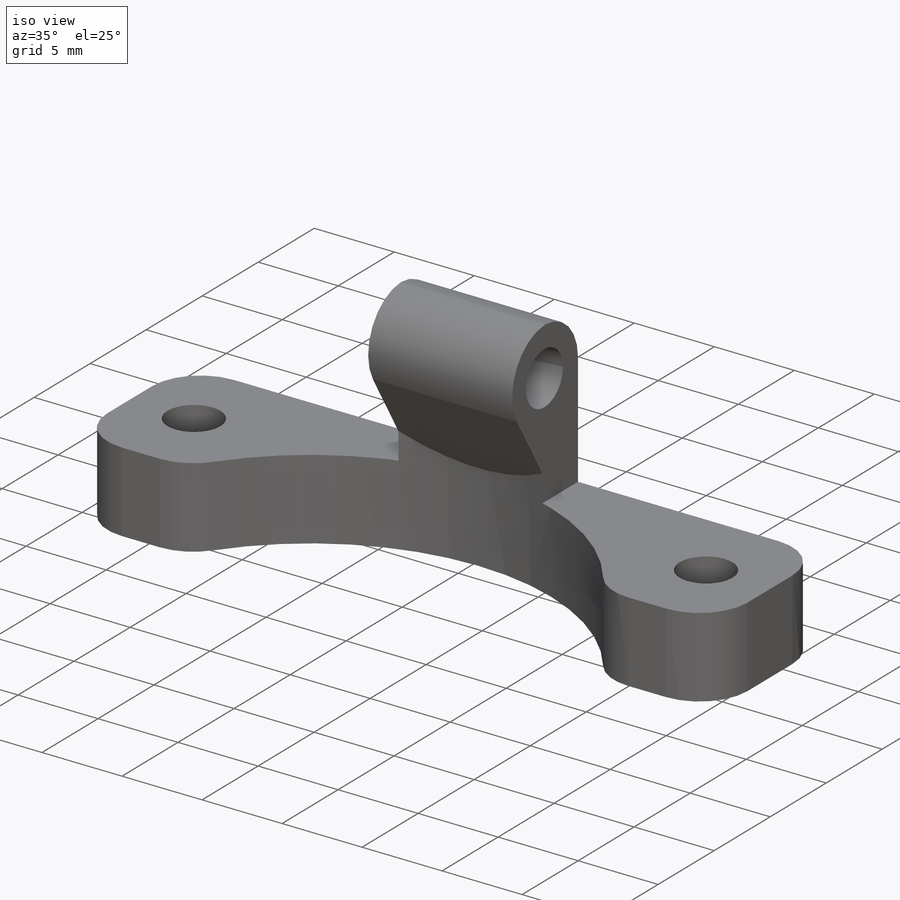
[diagram: iso view]
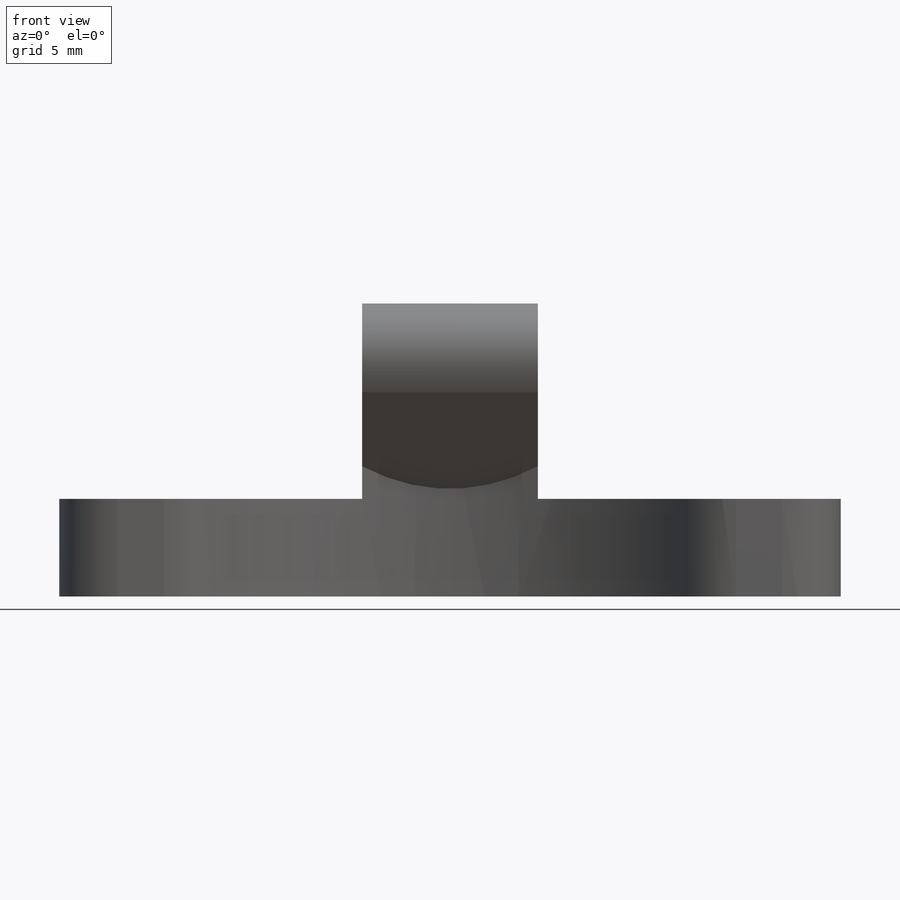
[diagram: front view]
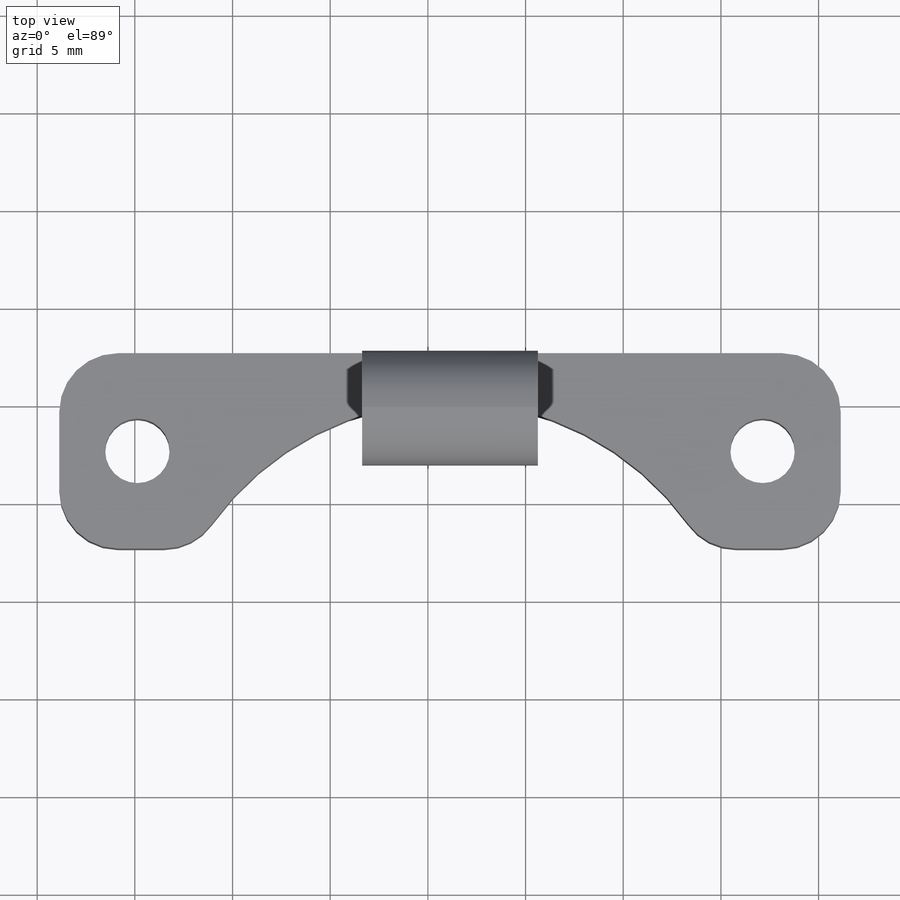
[diagram: top view]
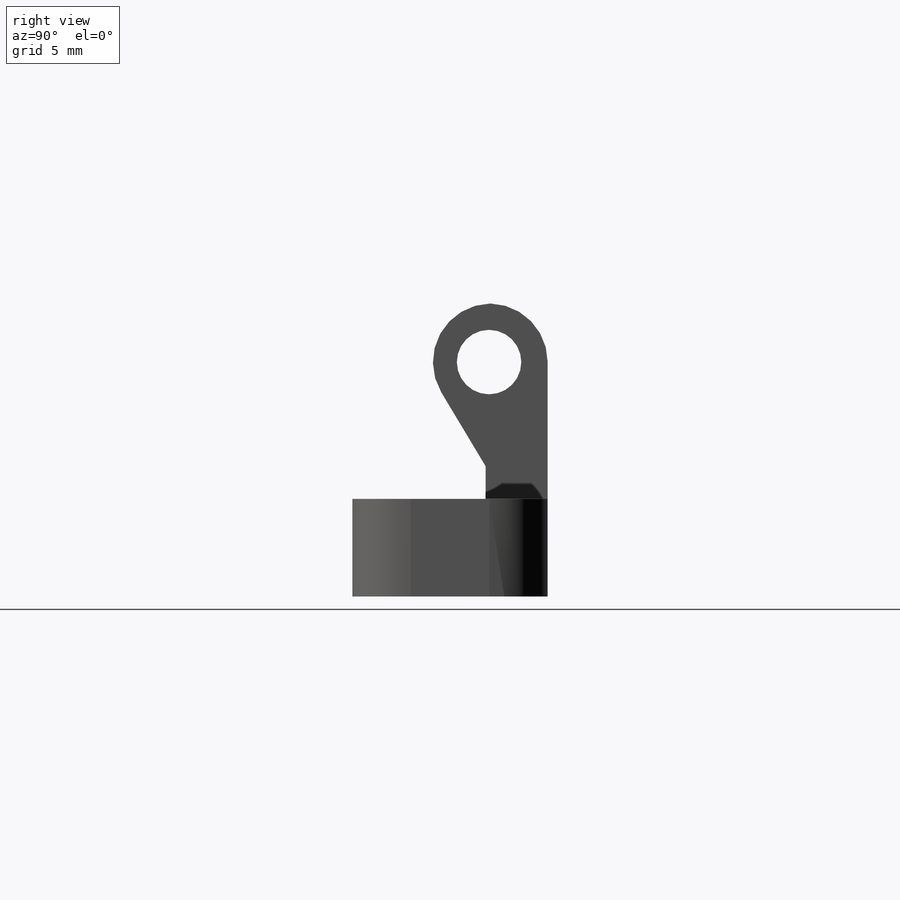
[diagram: right view]
SOLIDWORKS PART (.sldprt)
format: sldprt  version: not decoded by parser v0  size: 232,448 bytes
history: native  units: mm
features: sketch x6, plane x3, extrude x3, cut_extrude x3, fillet x3, material x1, chamfer x1 (+8 scaffold rows collapsed)
feature tree (28):
  scaffold x8  (default folders/planes/origin — collapsed)
  material  "Matériau <non spécifié>"
  plane  "Plan de face"
  plane  "Plan de dessus"
  plane  "Plan de droite"
  sketch  "Esquisse1"  dims[D1=40.0mm D2=10.0mm]
  extrude  "Boss.-Extru.1"  Depth=5mm
  sketch  "Esquisse2"  dims[D1=3.3mm D2=3.3mm D3=32.0mm D4=5.0mm D5=4.0mm D6=4.0mm]
  cut_extrude  "Enlèv. mat.-Extru.1"  [1 undecoded]
  fillet  "Congé5"  Radius=3mm
  sketch  "Esquisse6"  dims[D3=15.0mm D1=4.0mm D2=4.0mm]
  cut_extrude  "Enlèv. mat.-Extru.4"  [1 undecoded]
  fillet  "Congé6"  Radius=3mm
  sketch  "Esquisse7"  dims[D1=9.0mm D2=4.5mm]
  extrude  "Boss.-Extru.2"  Depth=10mm
  sketch  "Esquisse10"  dims[D1=5.0mm]
  extrude  "Boss.-Extru.4"  [1 undecoded]
  chamfer  "Chanfrein1"  Distance=6mm
  fillet  "Congé7"  Radius=3mm
  sketch  "Esquisse12"  dims[D1=~0.279772mm]
  cut_extrude  "Enlèv. mat.-Extru.5"  [1 undecoded]
decode coverage: 12 of 16 modeling features carry decoded parameters
note: ~ marks probable driven/reference dimensions
note: 4 parameter values undecoded
summary: no parameter record found for 4 features
note: suppression state not decoded; provenance and decode notes live in map.json
